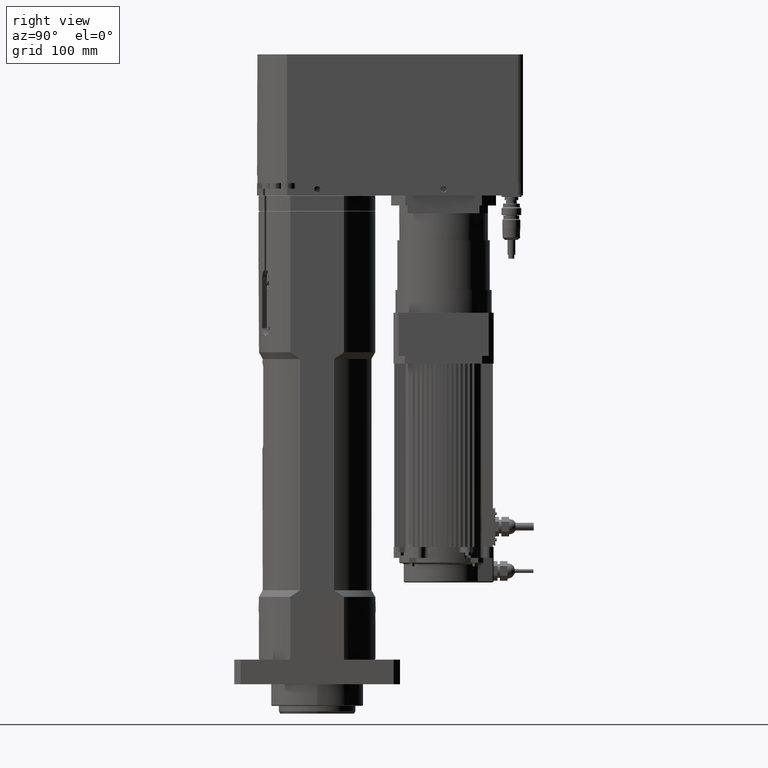
[diagram: clean part render]
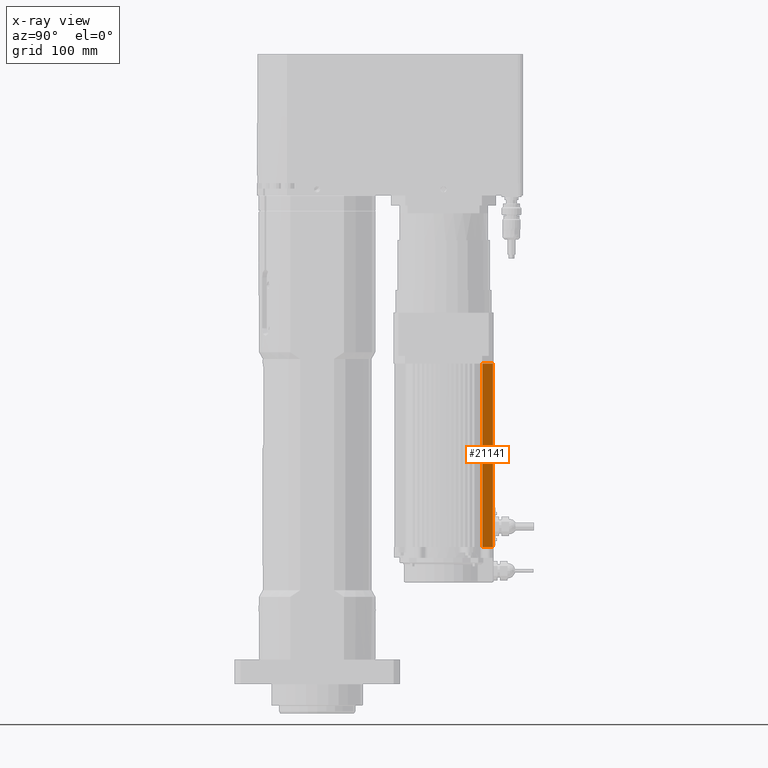
[diagram: x-ray — body ghosted, one internal face saturated and labeled with its STEP entity id]
A machine part, right view, then the same camera in x-ray: the body is ghosted and one INTERNAL B-rep face — a face not visible from any outside direction — is saturated and labeled: STEP entity #21141.
In plain terms, the highlighted planar face has unit normal (-1, -0, -0).
Its self-contained STEP definition (entity closure, byte-faithful):
#1145=LINE('',#36766,#2819);
#1146=LINE('',#36769,#2820);
#1415=LINE('',#37564,#3089);
#1416=LINE('',#37567,#3090);
#1417=LINE('',#37568,#3091);
#2819=VECTOR('',#27762,11.9827063929125);
#2820=VECTOR('',#27765,1.64617092752039);
#3089=VECTOR('',#28520,238.);
#3090=VECTOR('',#28523,13.6288773204329);
#3091=VECTOR('',#28524,238.);
#5433=FACE_OUTER_BOUND('',#6921,.T.);
#6921=EDGE_LOOP('',(#17073,#17074,#17075,#17076,#17077));
#9270=VERTEX_POINT('',#36345);
#9424=VERTEX_POINT('',#36764);
#9425=VERTEX_POINT('',#36768);
#9708=VERTEX_POINT('',#37562);
#9709=VERTEX_POINT('',#37566);
#11893=EDGE_CURVE('',#9424,#9270,#1145,.T.);
#11894=EDGE_CURVE('',#9270,#9425,#1146,.T.);
#12284=EDGE_CURVE('',#9708,#9424,#1415,.T.);
#12285=EDGE_CURVE('',#9709,#9708,#1416,.T.);
#12286=EDGE_CURVE('',#9709,#9425,#1417,.T.);
#17073=ORIENTED_EDGE('',*,*,#12285,.F.);
#17074=ORIENTED_EDGE('',*,*,#12286,.T.);
#17075=ORIENTED_EDGE('',*,*,#11894,.F.);
#17076=ORIENTED_EDGE('',*,*,#11893,.F.);
#17077=ORIENTED_EDGE('',*,*,#12284,.F.);
#18835=PLANE('',#23221);
#21141=ADVANCED_FACE('',(#5433),#18835,.T.);
#23221=AXIS2_PLACEMENT_3D('',#37565,#28521,#28522);
#27762=DIRECTION('',(-1.17677490824619E-16,1.,2.13267588378177E-53));
#27765=DIRECTION('',(-1.17677490824619E-16,1.,2.13267588378177E-53));
#28520=DIRECTION('',(4.6442906133275E-69,2.13267588378177E-53,-1.));
#28521=DIRECTION('center_axis',(-1.,-1.17677490824619E-16,-7.15397008078365E-69));
#28522=DIRECTION('ref_axis',(0.,1.,0.));
#28523=DIRECTION('',(1.17677490824619E-16,-1.,-2.13267588378177E-53));
#28524=DIRECTION('',(4.6442906133275E-69,2.13267588378177E-53,-1.));
#36345=CARTESIAN_POINT('',(37.,226.35382907248,178.));
#36764=CARTESIAN_POINT('',(37.,214.371122679568,178.));
#36766=CARTESIAN_POINT('',(37.,214.371122679568,178.));
#36768=CARTESIAN_POINT('',(37.,228.000000000001,178.));
#36769=CARTESIAN_POINT('',(37.,214.371122679568,178.));
#37562=CARTESIAN_POINT('',(37.,214.371122679568,416.));
#37564=CARTESIAN_POINT('',(37.,214.371122679568,416.));
#37565=CARTESIAN_POINT('Origin',(37.,214.371122679568,416.));
#37566=CARTESIAN_POINT('',(37.,228.000000000001,416.));
#37567=CARTESIAN_POINT('',(37.,189.185561339784,416.));
#37568=CARTESIAN_POINT('',(37.,228.000000000001,416.));